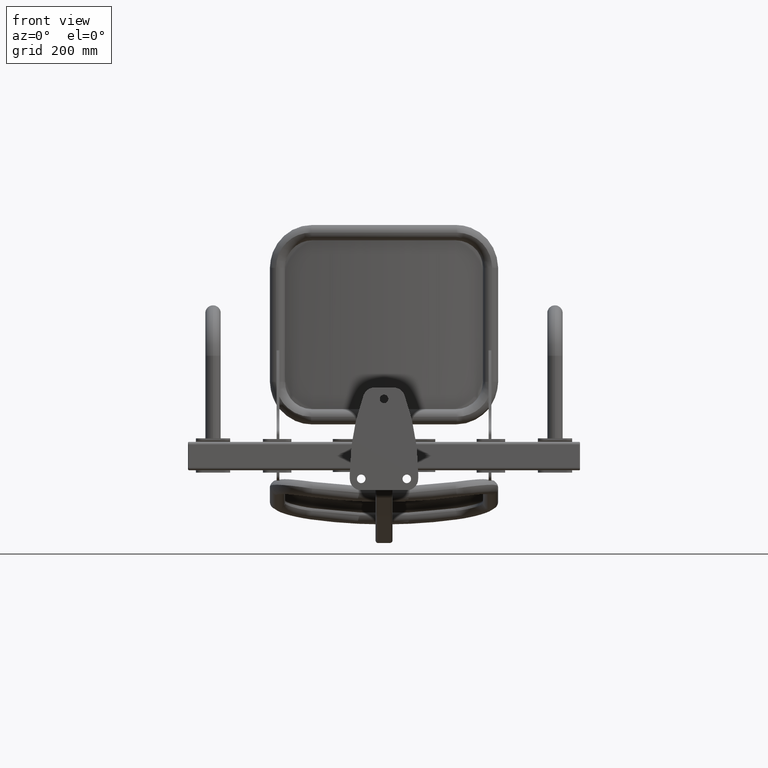
[diagram: clean part render]
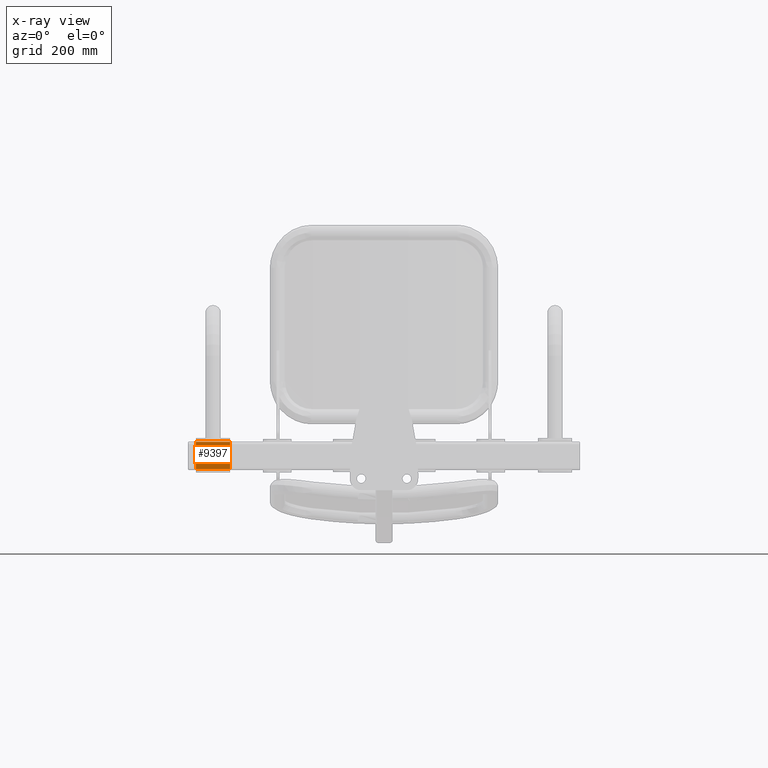
[diagram: x-ray — body ghosted, one internal face saturated and labeled with its STEP entity id]
A machine part, front view, then the same camera in x-ray: the body is ghosted and one INTERNAL B-rep face — a face not visible from any outside direction — is saturated and labeled: STEP entity #9397.
In plain terms, the highlighted planar face has unit normal (0, -1, 0).
Its self-contained STEP definition (entity closure, byte-faithful):
#1065 = AXIS2_PLACEMENT_3D ( 'NONE', #1438, #1441, #1442 ) ;
#1208 = CARTESIAN_POINT ( 'NONE',  ( 30.00000000000000000, 0.0000000000000000000, 24.00000000000000000 ) ) ;
#1273 = CARTESIAN_POINT ( 'NONE',  ( -30.00000000000000000, 0.0000000000000000000, -23.99999999999998900 ) ) ;
#1277 = CARTESIAN_POINT ( 'NONE',  ( 30.00000000000000000, 0.0000000000000000000, -23.99999999999998900 ) ) ;
#1283 = CARTESIAN_POINT ( 'NONE',  ( -30.00000000000000000, 0.0000000000000000000, 24.00000000000000000 ) ) ;
#1436 = PLANE ( 'NONE',  #1065 ) ;
#1438 = CARTESIAN_POINT ( 'NONE',  ( 30.00000000000000000, 0.0000000000000000000, 26.00000000000000000 ) ) ;
#1441 = DIRECTION ( 'NONE',  ( 0.0000000000000000000, -1.000000000000000000, 0.0000000000000000000 ) ) ;
#1442 = DIRECTION ( 'NONE',  ( 0.0000000000000000000, -0.0000000000000000000, -1.000000000000000000 ) ) ;
#2634 = EDGE_LOOP ( 'NONE', ( #14621, #14622, #14623, #14624 ) ) ;
#2809 = VERTEX_POINT ( 'NONE', #1208 ) ;
#6249 = CARTESIAN_POINT ( 'NONE',  ( 30.00000000000000000, 0.0000000000000000000, 26.00000000000000000 ) ) ;
#6250 = DIRECTION ( 'NONE',  ( 0.0000000000000000000, 0.0000000000000000000, 1.000000000000000000 ) ) ;
#6254 = CARTESIAN_POINT ( 'NONE',  ( -30.00000000000000000, 0.0000000000000000000, 24.00000000000000000 ) ) ;
#6259 = DIRECTION ( 'NONE',  ( -1.000000000000000000, 0.0000000000000000000, 0.0000000000000000000 ) ) ;
#6260 = CARTESIAN_POINT ( 'NONE',  ( -30.00000000000000000, 0.0000000000000000000, 26.00000000000000000 ) ) ;
#6261 = DIRECTION ( 'NONE',  ( 0.0000000000000000000, 0.0000000000000000000, 1.000000000000000000 ) ) ;
#6262 = CARTESIAN_POINT ( 'NONE',  ( 30.00000000000000000, 0.0000000000000000000, -24.00000000000000000 ) ) ;
#6263 = DIRECTION ( 'NONE',  ( 1.000000000000000000, -0.0000000000000000000, -0.0000000000000000000 ) ) ;
#9332 = VERTEX_POINT ( 'NONE', #1273 ) ;
#9338 = VERTEX_POINT ( 'NONE', #1277 ) ;
#9347 = VERTEX_POINT ( 'NONE', #1283 ) ;
#9397 = ADVANCED_FACE ( 'NONE', ( #16053 ), #1436, .T. ) ;
#10058 = EDGE_CURVE ( 'NONE', #9338, #2809, #10820, .T. ) ;
#10059 = EDGE_CURVE ( 'NONE', #2809, #9347, #10813, .T. ) ;
#10060 = EDGE_CURVE ( 'NONE', #9332, #9347, #10823, .T. ) ;
#10061 = EDGE_CURVE ( 'NONE', #9332, #9338, #10825, .T. ) ;
#10813 = LINE ( 'NONE', #6254, #10824 ) ;
#10820 = LINE ( 'NONE', #6249, #10822 ) ;
#10822 = VECTOR ( 'NONE', #6250, 1000.000000000000000 ) ;
#10823 = LINE ( 'NONE', #6260, #10826 ) ;
#10824 = VECTOR ( 'NONE', #6259, 1000.000000000000000 ) ;
#10825 = LINE ( 'NONE', #6262, #10828 ) ;
#10826 = VECTOR ( 'NONE', #6261, 1000.000000000000000 ) ;
#10828 = VECTOR ( 'NONE', #6263, 1000.000000000000000 ) ;
#14621 = ORIENTED_EDGE ( 'NONE', *, *, #10058, .T. ) ;
#14622 = ORIENTED_EDGE ( 'NONE', *, *, #10059, .T. ) ;
#14623 = ORIENTED_EDGE ( 'NONE', *, *, #10060, .F. ) ;
#14624 = ORIENTED_EDGE ( 'NONE', *, *, #10061, .T. ) ;
#16053 = FACE_OUTER_BOUND ( 'NONE', #2634, .T. ) ;